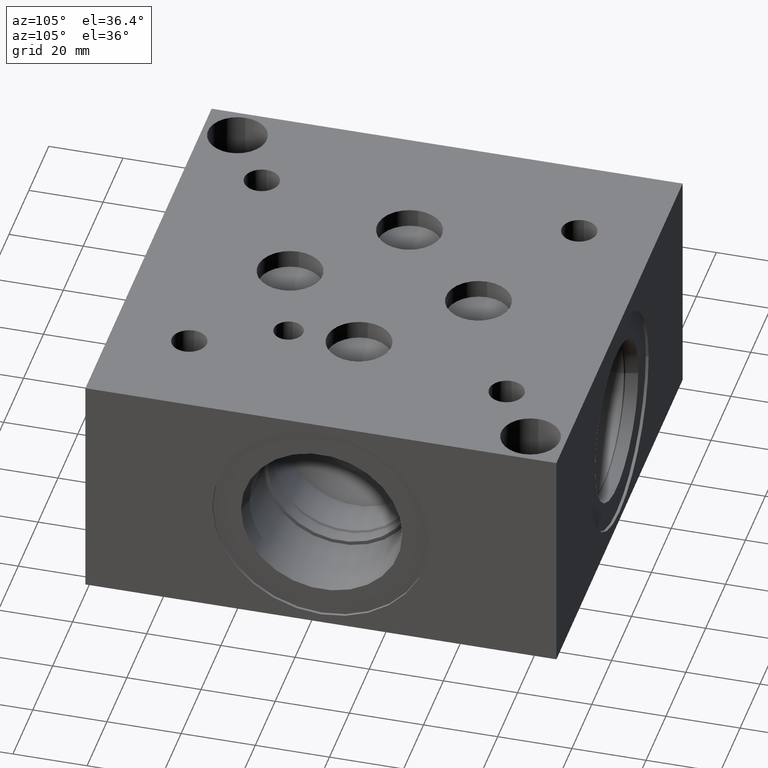
[diagram: clean part render]
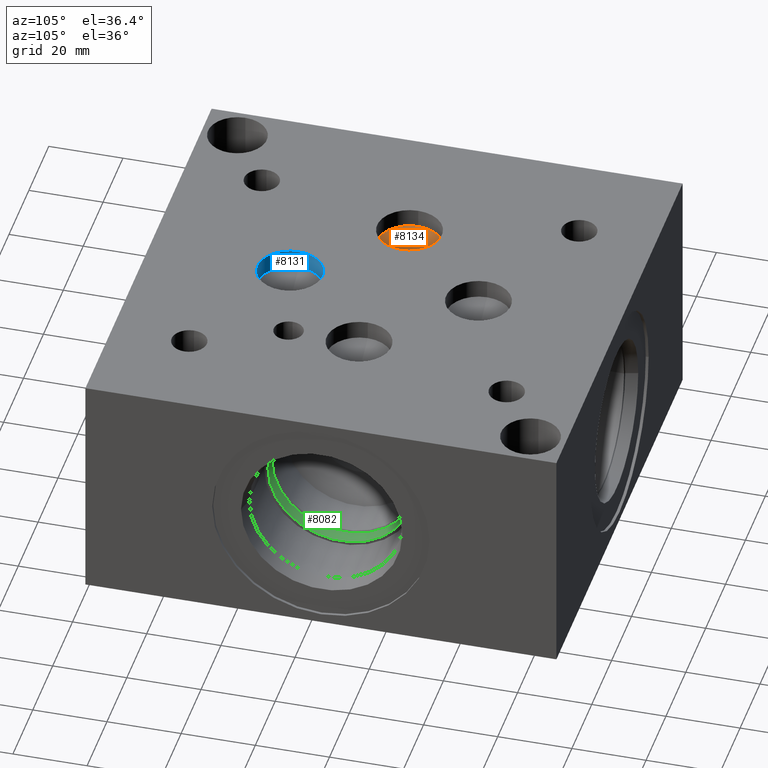
[diagram: same view with three faces highlighted in distinct colors, each labeled with its STEP entity id]
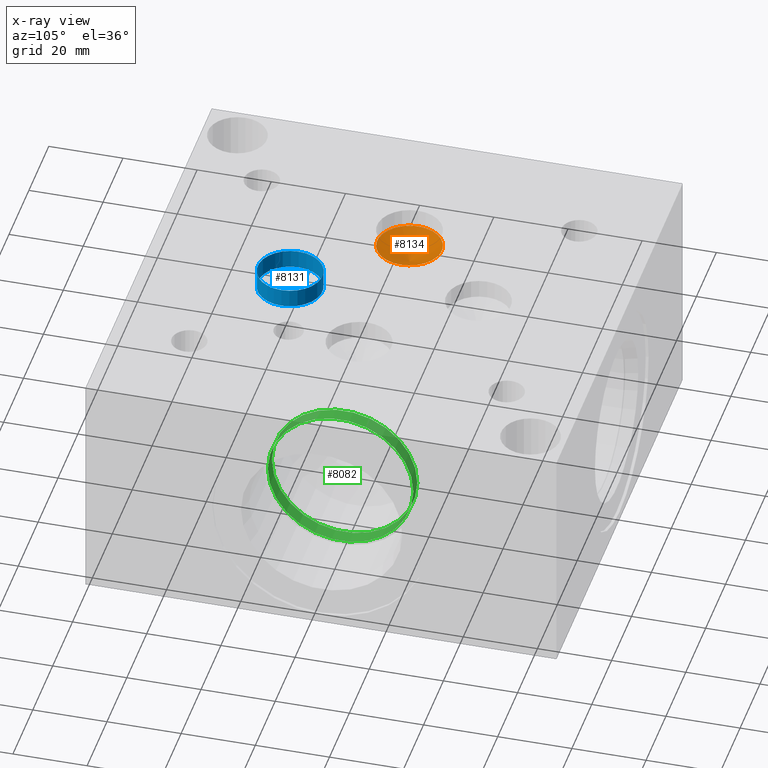
[diagram: x-ray of the same camera — body ghosted, the three highlighted faces saturated]
A machine part, auxiliary view with three faces highlighted in distinct colors.
The next image is the same camera in x-ray (body ghosted, the three faces saturated) — at least one of them is partly hidden behind the body in this view.
Their STEP definitions:

[orange] entity #8134 — the highlighted conical surface has half-angle 60 deg.
#78=CONICAL_SURFACE('',#8534,4.3688,1.0471975511966);
#181=CIRCLE('',#8535,8.7376);
#182=CIRCLE('',#8536,8.7376);
#1066=FACE_OUTER_BOUND('',#1519,.T.);
#1519=EDGE_LOOP('',(#7053,#7054,#7055,#7056));
#2269=LINE('',#14107,#2997);
#2997=VECTOR('',#10026,4.3688);
#3744=VERTEX_POINT('',#14103);
#3745=VERTEX_POINT('',#14104);
#3746=VERTEX_POINT('',#14106);
#4866=EDGE_CURVE('',#3744,#3745,#181,.T.);
#4867=EDGE_CURVE('',#3745,#3746,#2269,.T.);
#4868=EDGE_CURVE('',#3745,#3744,#182,.T.);
#7053=ORIENTED_EDGE('',*,*,#4866,.T.);
#7054=ORIENTED_EDGE('',*,*,#4867,.T.);
#7055=ORIENTED_EDGE('',*,*,#4867,.F.);
#7056=ORIENTED_EDGE('',*,*,#4868,.T.);
#8134=ADVANCED_FACE('',(#1066),#78,.F.);
#8534=AXIS2_PLACEMENT_3D('',#14102,#10022,#10023);
#8535=AXIS2_PLACEMENT_3D('',#14105,#10024,#10025);
#8536=AXIS2_PLACEMENT_3D('',#14108,#10027,#10028);
#10022=DIRECTION('center_axis',(0.,0.,1.));
#10023=DIRECTION('ref_axis',(1.,0.,0.));
#10024=DIRECTION('center_axis',(0.,0.,1.));
#10025=DIRECTION('ref_axis',(1.,0.,0.));
#10026=DIRECTION('',(0.866025403784439,1.06057523872491E-16,-0.5));
#10027=DIRECTION('center_axis',(0.,0.,1.));
#10028=DIRECTION('ref_axis',(1.,0.,0.));
#14102=CARTESIAN_POINT('Origin',(38.1,63.5762,55.9330121439644));
#14103=CARTESIAN_POINT('',(46.8376,63.5762,58.45534));
#14104=CARTESIAN_POINT('',(29.3624,63.5762,58.45534));
#14105=CARTESIAN_POINT('Origin',(38.1,63.5762,58.45534));
#14106=CARTESIAN_POINT('',(38.1,63.5762,53.4106842879287));
#14107=CARTESIAN_POINT('',(33.7312,63.5762,55.9330121439644));
#14108=CARTESIAN_POINT('Origin',(38.1,63.5762,58.45534));

[blue] entity #8131 — the highlighted cylindrical surface (bore or boss wall) has radius 8.7376 mm, axis along (0, 0, 1).
#46=CYLINDRICAL_SURFACE('',#8525,8.7376);
#173=CIRCLE('',#8523,8.7376);
#174=CIRCLE('',#8524,8.7376);
#175=CIRCLE('',#8526,8.7376);
#176=CIRCLE('',#8527,8.7376);
#1063=FACE_OUTER_BOUND('',#1516,.T.);
#1516=EDGE_LOOP('',(#7037,#7038,#7039,#7040,#7041,#7042));
#2266=LINE('',#14088,#2994);
#2994=VECTOR('',#10007,8.7376);
#3734=VERTEX_POINT('',#14077);
#3735=VERTEX_POINT('',#14078);
#3737=VERTEX_POINT('',#14084);
#3738=VERTEX_POINT('',#14085);
#4854=EDGE_CURVE('',#3734,#3735,#173,.T.);
#4856=EDGE_CURVE('',#3735,#3734,#174,.T.);
#4857=EDGE_CURVE('',#3737,#3738,#175,.T.);
#4858=EDGE_CURVE('',#3738,#3737,#176,.T.);
#4859=EDGE_CURVE('',#3738,#3735,#2266,.T.);
#7037=ORIENTED_EDGE('',*,*,#4857,.F.);
#7038=ORIENTED_EDGE('',*,*,#4858,.F.);
#7039=ORIENTED_EDGE('',*,*,#4859,.T.);
#7040=ORIENTED_EDGE('',*,*,#4854,.F.);
#7041=ORIENTED_EDGE('',*,*,#4856,.F.);
#7042=ORIENTED_EDGE('',*,*,#4859,.F.);
#8131=ADVANCED_FACE('',(#1063),#46,.F.);
#8523=AXIS2_PLACEMENT_3D('',#14079,#9996,#9997);
#8524=AXIS2_PLACEMENT_3D('',#14082,#9999,#10000);
#8525=AXIS2_PLACEMENT_3D('',#14083,#10001,#10002);
#8526=AXIS2_PLACEMENT_3D('',#14086,#10003,#10004);
#8527=AXIS2_PLACEMENT_3D('',#14087,#10005,#10006);
#9996=DIRECTION('center_axis',(0.,0.,1.));
#9997=DIRECTION('ref_axis',(1.,0.,0.));
#9999=DIRECTION('center_axis',(0.,0.,1.));
#10000=DIRECTION('ref_axis',(1.,0.,0.));
#10001=DIRECTION('center_axis',(0.,0.,1.));
#10002=DIRECTION('ref_axis',(1.,0.,0.));
#10003=DIRECTION('center_axis',(0.,0.,-1.));
#10004=DIRECTION('ref_axis',(1.,0.,0.));
#10005=DIRECTION('center_axis',(0.,0.,-1.));
#10006=DIRECTION('ref_axis',(1.,0.,0.));
#10007=DIRECTION('',(0.,0.,-1.));
#14077=CARTESIAN_POINT('',(72.2376,38.1762,58.45534));
#14078=CARTESIAN_POINT('',(54.7624,38.1762,58.45534));
#14079=CARTESIAN_POINT('Origin',(63.5,38.1762,58.45534));
#14082=CARTESIAN_POINT('Origin',(63.5,38.1762,58.45534));
#14083=CARTESIAN_POINT('Origin',(63.5,38.1762,60.97767));
#14084=CARTESIAN_POINT('',(72.2376,38.1762,63.5));
#14085=CARTESIAN_POINT('',(54.7624,38.1762,63.5));
#14086=CARTESIAN_POINT('Origin',(63.5,38.1762,63.5));
#14087=CARTESIAN_POINT('Origin',(63.5,38.1762,63.5));
#14088=CARTESIAN_POINT('',(54.7624,38.1762,60.97767));

[green] entity #8082 — the highlighted cylindrical surface (bore or boss wall) has radius 19.6088 mm, axis along (1, 0, 0).
#23=CYLINDRICAL_SURFACE('',#8390,19.6088);
#90=CIRCLE('',#8382,19.6088);
#91=CIRCLE('',#8383,19.6088);
#94=CIRCLE('',#8387,19.6088);
#1014=FACE_OUTER_BOUND('',#1458,.T.);
#1458=EDGE_LOOP('',(#6794,#6795,#6796,#6797,#6798));
#2226=LINE('',#13823,#2954);
#2954=VECTOR('',#9693,19.6088);
#3645=VERTEX_POINT('',#13806);
#3646=VERTEX_POINT('',#13807);
#3649=VERTEX_POINT('',#13816);
#4723=EDGE_CURVE('',#3645,#3646,#90,.T.);
#4725=EDGE_CURVE('',#3646,#3645,#91,.T.);
#4728=EDGE_CURVE('',#3649,#3649,#94,.T.);
#4731=EDGE_CURVE('',#3649,#3646,#2226,.T.);
#6794=ORIENTED_EDGE('',*,*,#4728,.T.);
#6795=ORIENTED_EDGE('',*,*,#4731,.T.);
#6796=ORIENTED_EDGE('',*,*,#4723,.F.);
#6797=ORIENTED_EDGE('',*,*,#4725,.F.);
#6798=ORIENTED_EDGE('',*,*,#4731,.F.);
#8082=ADVANCED_FACE('',(#1014),#23,.F.);
#8382=AXIS2_PLACEMENT_3D('',#13808,#9673,#9674);
#8383=AXIS2_PLACEMENT_3D('',#13810,#9676,#9677);
#8387=AXIS2_PLACEMENT_3D('',#13817,#9684,#9685);
#8390=AXIS2_PLACEMENT_3D('',#13822,#9691,#9692);
#9673=DIRECTION('center_axis',(1.,0.,0.));
#9674=DIRECTION('ref_axis',(0.,1.,0.));
#9676=DIRECTION('center_axis',(1.,0.,0.));
#9677=DIRECTION('ref_axis',(0.,1.,0.));
#9684=DIRECTION('center_axis',(1.,0.,0.));
#9685=DIRECTION('ref_axis',(0.,1.,0.));
#9691=DIRECTION('center_axis',(1.,0.,0.));
#9692=DIRECTION('ref_axis',(0.,1.,0.));
#9693=DIRECTION('',(-1.,0.,0.));
#13806=CARTESIAN_POINT('',(103.193,83.1088,31.75));
#13807=CARTESIAN_POINT('',(103.193,43.8912,31.75));
#13808=CARTESIAN_POINT('Origin',(103.193,63.5,31.75));
#13810=CARTESIAN_POINT('Origin',(103.193,63.5,31.75));
#13816=CARTESIAN_POINT('',(107.1626,43.8912,31.75));
#13817=CARTESIAN_POINT('Origin',(107.1626,63.5,31.75));
#13822=CARTESIAN_POINT('Origin',(115.0965,63.5,31.75));
#13823=CARTESIAN_POINT('',(115.0965,43.8912,31.75));